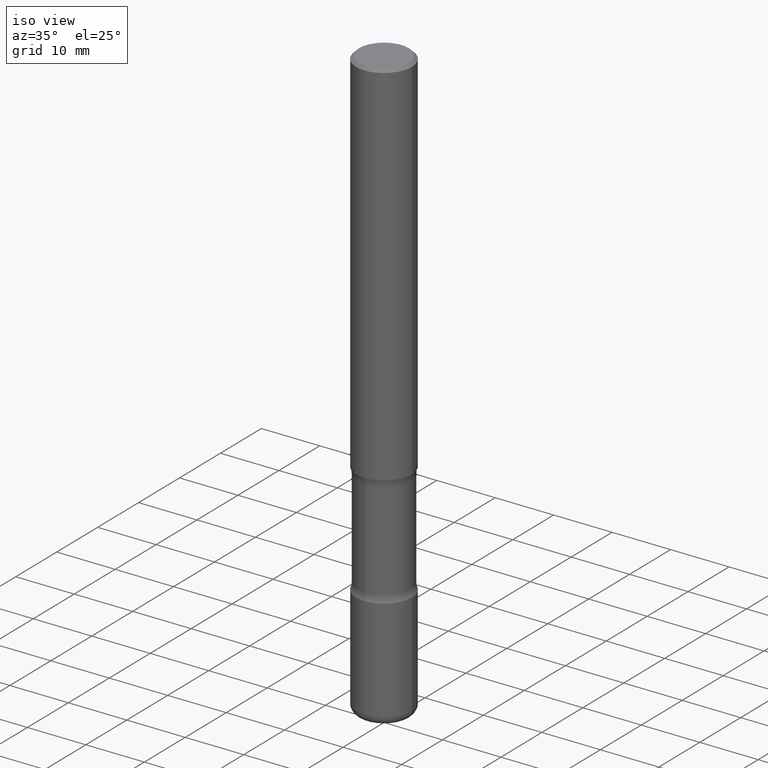
[diagram: clean part render]
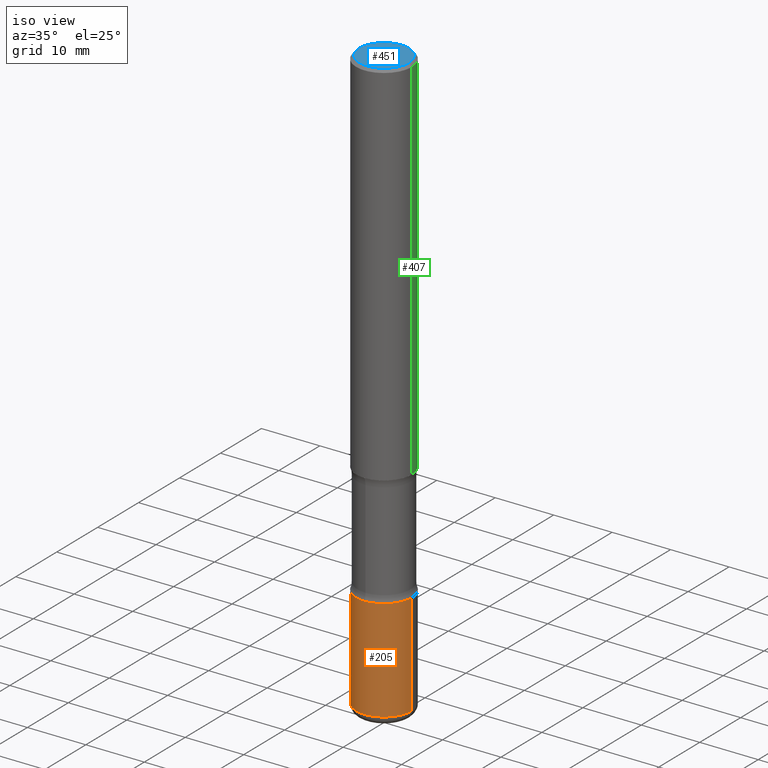
[diagram: same view with three faces highlighted in distinct colors, each labeled with its STEP entity id]
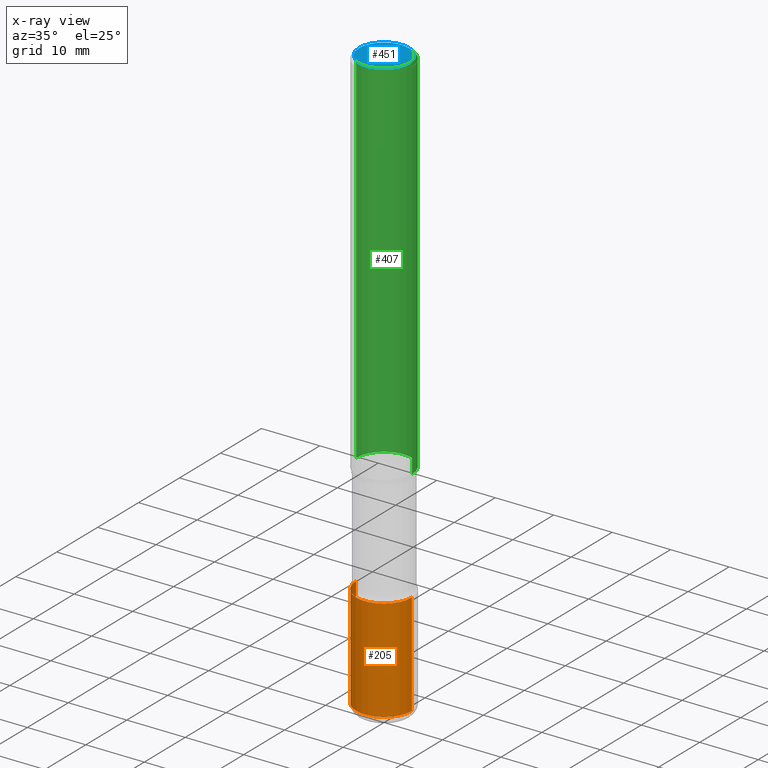
[diagram: x-ray of the same camera — body ghosted, the three highlighted faces saturated]
A machine part, iso view with three faces highlighted in distinct colors.
The next image is the same camera in x-ray (body ghosted, the three faces saturated) — at least one of them is partly hidden behind the body in this view.
Their STEP definitions:

[orange] entity #205 — the highlighted cylindrical surface (edge-blend (fillet) strip) has radius 4.7625 mm, axis along (-0, 0, 1).
#15 = ORIENTED_EDGE ( 'NONE', *, *, #52, .F. ) ;
#27 = DIRECTION ( 'NONE',  ( 1.000000000000000000, -6.982962677686266711E-15, 4.876176775795935793E-29 ) ) ;
#50 = VERTEX_POINT ( 'NONE', #489 ) ;
#52 = EDGE_CURVE ( 'NONE', #265, #50, #198, .T. ) ;
#58 = CARTESIAN_POINT ( 'NONE',  ( 7.947773620101696182E-29, -1.134731435124022600E-14, -3.250000000000000444 ) ) ;
#68 = CYLINDRICAL_SURFACE ( 'NONE', #353, 0.1875000000000001110 ) ;
#73 = CARTESIAN_POINT ( 'NONE',  ( -0.1875000000000000833, -1.121960778359092137E-14, -3.250000000000000444 ) ) ;
#79 = EDGE_LOOP ( 'NONE', ( #365, #429, #470, #15 ) ) ;
#84 = CARTESIAN_POINT ( 'NONE',  ( 0.1875000000000001110, -1.506574197710817060E-14, -3.939999999999999947 ) ) ;
#154 = CARTESIAN_POINT ( 'NONE',  ( -0.1875000000000001110, 1.332267629550188637E-15, -9.223003294227953596E-30 ) ) ;
#156 = CARTESIAN_POINT ( 'NONE',  ( 0.000000000000000000, 0.000000000000000000, 0.000000000000000000 ) ) ;
#160 = LINE ( 'NONE', #214, #441 ) ;
#161 = AXIS2_PLACEMENT_3D ( 'NONE', #287, #538, #491 ) ;
#171 = EDGE_CURVE ( 'NONE', #175, #265, #460, .T. ) ;
#175 = VERTEX_POINT ( 'NONE', #203 ) ;
#198 = CIRCLE ( 'NONE', #240, 0.1875000000000000833 ) ;
#199 = VECTOR ( 'NONE', #281, 39.37007874015748143 ) ;
#203 = CARTESIAN_POINT ( 'NONE',  ( -0.1875000000000001110, -1.242416884549180617E-14, -3.939999999999999947 ) ) ;
#205 = ADVANCED_FACE ( 'NONE', ( #275 ), #68, .T. ) ;
#214 = CARTESIAN_POINT ( 'NONE',  ( 0.1875000000000001110, -1.309305502066175797E-15, 9.142831454617385217E-30 ) ) ;
#240 = AXIS2_PLACEMENT_3D ( 'NONE', #58, #269, #402 ) ;
#256 = EDGE_CURVE ( 'NONE', #175, #296, #262, .T. ) ;
#262 = CIRCLE ( 'NONE', #161, 0.1875000000000001388 ) ;
#265 = VERTEX_POINT ( 'NONE', #73 ) ;
#269 = DIRECTION ( 'NONE',  ( -2.445468806185136597E-29, 3.491481338843145583E-15, 1.000000000000000000 ) ) ;
#275 = FACE_OUTER_BOUND ( 'NONE', #79, .T. ) ;
#281 = DIRECTION ( 'NONE',  ( -2.445468806185136877E-29, 3.491481338843145188E-15, 1.000000000000000000 ) ) ;
#287 = CARTESIAN_POINT ( 'NONE',  ( 9.635147096369438236E-29, -1.375643647504199401E-14, -3.939999999999999947 ) ) ;
#296 = VERTEX_POINT ( 'NONE', #84 ) ;
#353 = AXIS2_PLACEMENT_3D ( 'NONE', #156, #376, #27 ) ;
#363 = EDGE_CURVE ( 'NONE', #296, #50, #160, .T. ) ;
#365 = ORIENTED_EDGE ( 'NONE', *, *, #171, .F. ) ;
#376 = DIRECTION ( 'NONE',  ( -2.445468806185136597E-29, 3.491481338843145583E-15, 1.000000000000000000 ) ) ;
#391 = DIRECTION ( 'NONE',  ( -2.445468806185136877E-29, 3.491481338843145188E-15, 1.000000000000000000 ) ) ;
#402 = DIRECTION ( 'NONE',  ( 1.000000000000000000, -6.982962677686269866E-15, 0.000000000000000000 ) ) ;
#429 = ORIENTED_EDGE ( 'NONE', *, *, #256, .T. ) ;
#441 = VECTOR ( 'NONE', #391, 39.37007874015748143 ) ;
#460 = LINE ( 'NONE', #154, #199 ) ;
#470 = ORIENTED_EDGE ( 'NONE', *, *, #363, .T. ) ;
#489 = CARTESIAN_POINT ( 'NONE',  ( 0.1875000000000000833, -1.265661985330640259E-14, -3.250000000000000444 ) ) ;
#491 = DIRECTION ( 'NONE',  ( 1.000000000000000000, -6.982962677686267499E-15, 0.000000000000000000 ) ) ;
#538 = DIRECTION ( 'NONE',  ( -2.445468806185136597E-29, 3.491481338843145583E-15, 1.000000000000000000 ) ) ;

[blue] entity #451 — the highlighted planar face has unit normal (0, -0, -1).
#17 = CARTESIAN_POINT ( 'NONE',  ( 0.000000000000000000, 0.000000000000000000, 0.000000000000000000 ) ) ;
#22 = EDGE_CURVE ( 'NONE', #390, #213, #371, .T. ) ;
#35 = DIRECTION ( 'NONE',  ( 2.438088387897960049E-29, -3.491481338843145188E-15, -1.000000000000000000 ) ) ;
#36 = DIRECTION ( 'NONE',  ( 1.000000000000000000, -6.982962677686265922E-15, 4.876176775795935793E-29 ) ) ;
#39 = ORIENTED_EDGE ( 'NONE', *, *, #22, .T. ) ;
#125 = CARTESIAN_POINT ( 'NONE',  ( -0.1674999999999998990, 1.204561061900880061E-15, -8.301862719484106184E-30 ) ) ;
#146 = EDGE_CURVE ( 'NONE', #213, #390, #290, .T. ) ;
#213 = VERTEX_POINT ( 'NONE', #237 ) ;
#223 = AXIS2_PLACEMENT_3D ( 'NONE', #17, #446, #314 ) ;
#237 = CARTESIAN_POINT ( 'NONE',  ( 0.1674999999999998990, -1.252653207992877500E-15, 8.469775550109235181E-30 ) ) ;
#283 = FACE_OUTER_BOUND ( 'NONE', #436, .T. ) ;
#286 = CARTESIAN_POINT ( 'NONE',  ( 1.169646248512448806E-15, 0.1674999999999998990, -5.848231242562264739E-16 ) ) ;
#290 = CIRCLE ( 'NONE', #490, 0.1674999999999998990 ) ;
#314 = DIRECTION ( 'NONE',  ( 1.000000000000000000, -6.982962677686265922E-15, 4.876176775795935793E-29 ) ) ;
#317 = DIRECTION ( 'NONE',  ( -2.445468806185136597E-29, 3.491481338843145583E-15, 1.000000000000000000 ) ) ;
#330 = DIRECTION ( 'NONE',  ( -1.000000000000000000, 6.982962677686265922E-15, -4.876176775795935793E-29 ) ) ;
#341 = ORIENTED_EDGE ( 'NONE', *, *, #146, .T. ) ;
#371 = CIRCLE ( 'NONE', #223, 0.1674999999999998990 ) ;
#390 = VERTEX_POINT ( 'NONE', #125 ) ;
#408 = CARTESIAN_POINT ( 'NONE',  ( 0.000000000000000000, 0.000000000000000000, 0.000000000000000000 ) ) ;
#422 = PLANE ( 'NONE',  #455 ) ;
#436 = EDGE_LOOP ( 'NONE', ( #39, #341 ) ) ;
#446 = DIRECTION ( 'NONE',  ( -2.445468806185136597E-29, 3.491481338843145583E-15, 1.000000000000000000 ) ) ;
#451 = ADVANCED_FACE ( 'NONE', ( #283 ), #422, .F. ) ;
#455 = AXIS2_PLACEMENT_3D ( 'NONE', #286, #35, #330 ) ;
#490 = AXIS2_PLACEMENT_3D ( 'NONE', #408, #317, #36 ) ;

[green] entity #407 — the highlighted cylindrical surface (edge-blend (fillet) strip) has radius 4.7625 mm, axis along (-0, 0, 1).
#4 = VERTEX_POINT ( 'NONE', #449 ) ;
#7 = ORIENTED_EDGE ( 'NONE', *, *, #106, .T. ) ;
#8 = CARTESIAN_POINT ( 'NONE',  ( 6.113672015462842613E-29, -8.728703347107864943E-15, -2.500000000000000000 ) ) ;
#21 = VERTEX_POINT ( 'NONE', #310 ) ;
#30 = DIRECTION ( 'NONE',  ( 1.000000000000000000, -6.982962677686265922E-15, 4.876176775795935793E-29 ) ) ;
#65 = CIRCLE ( 'NONE', #421, 0.1875000000000001110 ) ;
#74 = VECTOR ( 'NONE', #512, 39.37007874015748143 ) ;
#93 = DIRECTION ( 'NONE',  ( -2.445468806185136597E-29, 3.491481338843145583E-15, 1.000000000000000000 ) ) ;
#98 = LINE ( 'NONE', #182, #224 ) ;
#106 = EDGE_CURVE ( 'NONE', #336, #4, #65, .T. ) ;
#111 = CIRCLE ( 'NONE', #361, 0.1874999999999999167 ) ;
#120 = CARTESIAN_POINT ( 'NONE',  ( 0.000000000000000000, 0.000000000000000000, 0.000000000000000000 ) ) ;
#137 = EDGE_CURVE ( 'NONE', #4, #21, #98, .T. ) ;
#147 = EDGE_LOOP ( 'NONE', ( #7, #509, #345, #162 ) ) ;
#159 = FACE_OUTER_BOUND ( 'NONE', #147, .T. ) ;
#162 = ORIENTED_EDGE ( 'NONE', *, *, #297, .F. ) ;
#182 = CARTESIAN_POINT ( 'NONE',  ( -0.1875000000000000278, 1.332267629550188046E-15, -9.223003294227947991E-30 ) ) ;
#224 = VECTOR ( 'NONE', #531, 39.37007874015748143 ) ;
#235 = DIRECTION ( 'NONE',  ( 1.000000000000000000, -6.982962677686265922E-15, 0.000000000000000000 ) ) ;
#243 = EDGE_CURVE ( 'NONE', #534, #21, #111, .T. ) ;
#251 = LINE ( 'NONE', #340, #74 ) ;
#261 = DIRECTION ( 'NONE',  ( 1.000000000000000000, -6.982962677686263555E-15, 0.000000000000000000 ) ) ;
#278 = CARTESIAN_POINT ( 'NONE',  ( 0.1874999999999999167, -1.356173001359024677E-15, -0.02000000000000006981 ) ) ;
#297 = EDGE_CURVE ( 'NONE', #336, #534, #251, .T. ) ;
#310 = CARTESIAN_POINT ( 'NONE',  ( -0.1874999999999999167, 1.239475875289311118E-15, -0.02000000000000006981 ) ) ;
#336 = VERTEX_POINT ( 'NONE', #559 ) ;
#340 = CARTESIAN_POINT ( 'NONE',  ( 0.1875000000000000278, -1.309305502066175008E-15, 9.142831454617381013E-30 ) ) ;
#345 = ORIENTED_EDGE ( 'NONE', *, *, #243, .F. ) ;
#361 = AXIS2_PLACEMENT_3D ( 'NONE', #457, #452, #235 ) ;
#407 = ADVANCED_FACE ( 'NONE', ( #159 ), #508, .T. ) ;
#421 = AXIS2_PLACEMENT_3D ( 'NONE', #8, #93, #261 ) ;
#449 = CARTESIAN_POINT ( 'NONE',  ( -0.1875000000000000833, -3.066998857392172722E-15, -2.500000000000000000 ) ) ;
#452 = DIRECTION ( 'NONE',  ( -2.445468806185136597E-29, 3.491481338843145583E-15, 1.000000000000000000 ) ) ;
#457 = CARTESIAN_POINT ( 'NONE',  ( 4.890937612370289799E-31, -6.982962677686315028E-17, -0.02000000000000006981 ) ) ;
#474 = AXIS2_PLACEMENT_3D ( 'NONE', #120, #555, #30 ) ;
#508 = CYLINDRICAL_SURFACE ( 'NONE', #474, 0.1875000000000000278 ) ;
#509 = ORIENTED_EDGE ( 'NONE', *, *, #137, .T. ) ;
#512 = DIRECTION ( 'NONE',  ( -2.445468806185136877E-29, 3.491481338843145188E-15, 1.000000000000000000 ) ) ;
#531 = DIRECTION ( 'NONE',  ( -2.445468806185136877E-29, 3.491481338843145188E-15, 1.000000000000000000 ) ) ;
#534 = VERTEX_POINT ( 'NONE', #278 ) ;
#555 = DIRECTION ( 'NONE',  ( -2.445468806185136597E-29, 3.491481338843145583E-15, 1.000000000000000000 ) ) ;
#559 = CARTESIAN_POINT ( 'NONE',  ( 0.1875000000000001110, -1.003800884917403995E-14, -2.500000000000000000 ) ) ;